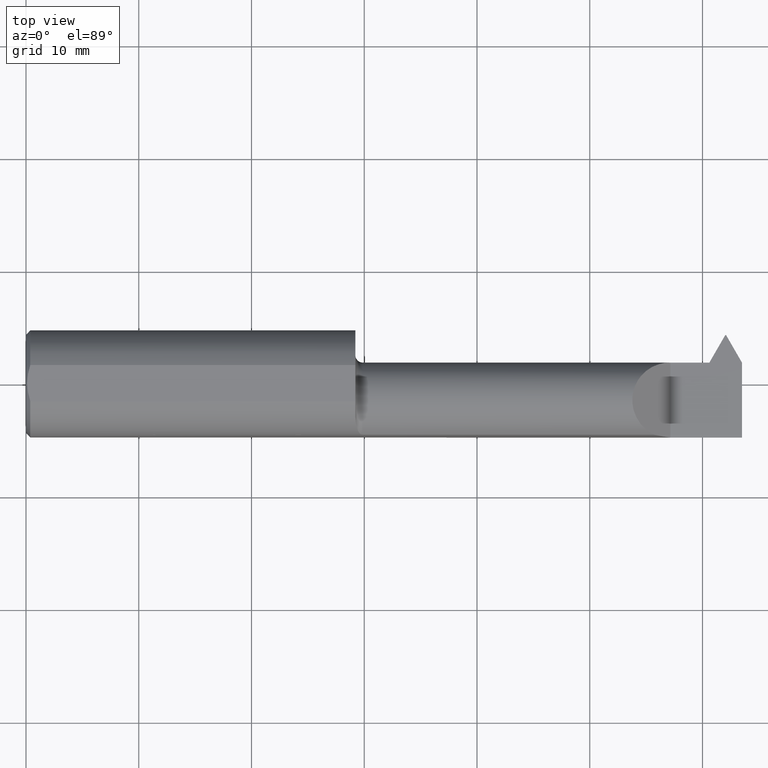
[diagram: clean part render]
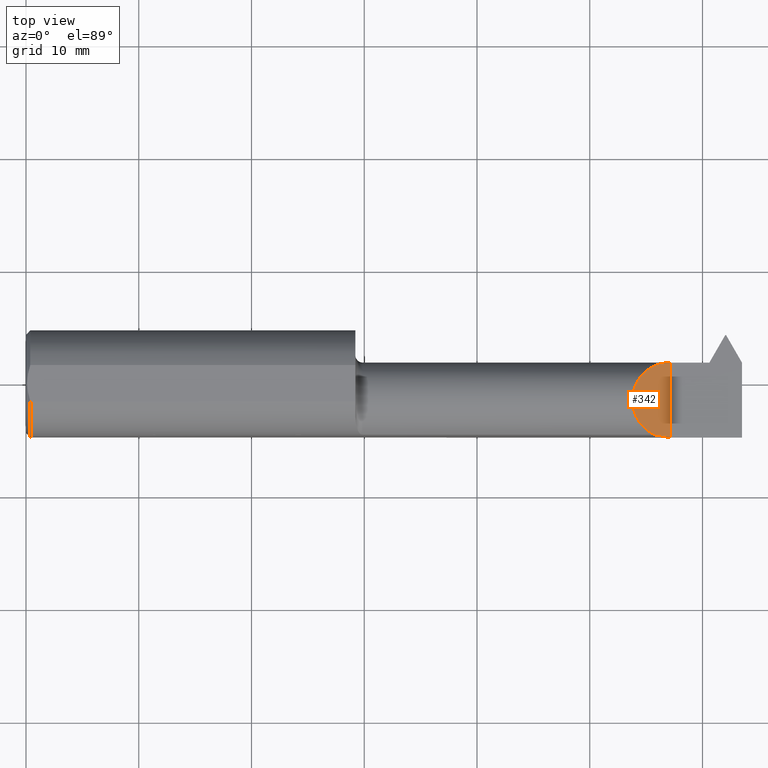
[diagram: same view with one face highlighted and labeled with its STEP entity id]
A machine part, top view. The second image highlights one B-rep face of the part: STEP entity #342.
In plain terms, the highlighted planar face has unit normal (-0.7071, 0, -0.7071).
Its self-contained STEP definition (entity closure, byte-faithful):
#19 = CARTESIAN_POINT ( 'NONE',  ( 2.192691453216397690, -0.1783697086546694455, 0.05730854678360214338 ) ) ;
#21 = CARTESIAN_POINT ( 'NONE',  ( 2.250000000000000000, 0.07464999999999979985, 4.959819536546775670E-16 ) ) ;
#31 = ORIENTED_EDGE ( 'NONE', *, *, #67, .F. ) ;
#54 =( BOUNDED_CURVE ( )  B_SPLINE_CURVE ( 3, ( #363, #670, #307, #467 ),
 .UNSPECIFIED., .F., .T. ) 
 B_SPLINE_CURVE_WITH_KNOTS ( ( 4, 4 ),
 ( 4.712388980384690562, 5.023262387692865261 ),
 .UNSPECIFIED. ) 
 CURVE ( )  GEOMETRIC_REPRESENTATION_ITEM ( )  RATIONAL_B_SPLINE_CURVE ( ( 1.000000000000000000, 0.9919626788073504509, 0.9919626788073504509, 1.000000000000000000 ) ) 
 REPRESENTATION_ITEM ( '' )  );
#67 = EDGE_CURVE ( 'NONE', #601, #623, #696, .T. ) ;
#79 = AXIS2_PLACEMENT_3D ( 'NONE', #177, #732, #415 ) ;
#115 = LINE ( 'NONE', #400, #801 ) ;
#177 = CARTESIAN_POINT ( 'NONE',  ( 2.250000000000000000, -0.2500000000000000555, 9.184850993605143507E-17 ) ) ;
#187 = EDGE_CURVE ( 'NONE', #763, #601, #54, .T. ) ;
#286 = CARTESIAN_POINT ( 'NONE',  ( 2.250000000000000000, 0.07464999999999979985, 4.959819536546775670E-16 ) ) ;
#303 = DIRECTION ( 'NONE',  ( -0.000000000000000000, 1.000000000000000000, -0.000000000000000000 ) ) ;
#307 = CARTESIAN_POINT ( 'NONE',  ( 2.211249739839922235, -0.1843323154515827400, 0.03875026016007727947 ) ) ;
#322 = EDGE_LOOP ( 'NONE', ( #31, #627, #328 ) ) ;
#328 = ORIENTED_EDGE ( 'NONE', *, *, #359, .T. ) ;
#338 = FACE_OUTER_BOUND ( 'NONE', #322, .T. ) ;
#342 = ADVANCED_FACE ( 'NONE', ( #338 ), #668, .F. ) ;
#359 = EDGE_CURVE ( 'NONE', #763, #623, #115, .T. ) ;
#363 = CARTESIAN_POINT ( 'NONE',  ( 2.250000000000000000, -0.1873499999999999888, 9.184850993605143507E-17 ) ) ;
#399 = CARTESIAN_POINT ( 'NONE',  ( 2.030319072763994814, -0.1008380660117488836, 0.2196809272360033816 ) ) ;
#400 = CARTESIAN_POINT ( 'NONE',  ( 2.250000000000000000, -0.2500000000000000555, 9.184850993605143507E-17 ) ) ;
#415 = DIRECTION ( 'NONE',  ( -0.7071067811865511255, 0.000000000000000000, 0.7071067811865440200 ) ) ;
#462 = CARTESIAN_POINT ( 'NONE',  ( 2.192691453216397690, -0.1783697086546694455, 0.05730854678360214338 ) ) ;
#467 = CARTESIAN_POINT ( 'NONE',  ( 2.192691453216397690, -0.1783697086546694455, 0.05730854678360214338 ) ) ;
#574 = CARTESIAN_POINT ( 'NONE',  ( 2.070066830337790265, 0.07464999999999938352, 0.1799331696622082921 ) ) ;
#590 = CARTESIAN_POINT ( 'NONE',  ( 2.250000000000000000, -0.1873499999999999888, 9.184850993605143507E-17 ) ) ;
#601 = VERTEX_POINT ( 'NONE', #462 ) ;
#623 = VERTEX_POINT ( 'NONE', #21 ) ;
#627 = ORIENTED_EDGE ( 'NONE', *, *, #187, .F. ) ;
#668 = PLANE ( 'NONE',  #79 ) ;
#670 = CARTESIAN_POINT ( 'NONE',  ( 2.230507368514859312, -0.1873499999999999888, 0.01949263148514072258 ) ) ;
#696 =( BOUNDED_CURVE ( )  B_SPLINE_CURVE ( 3, ( #19, #399, #574, #286 ),
 .UNSPECIFIED., .F., .T. ) 
 B_SPLINE_CURVE_WITH_KNOTS ( ( 4, 4 ),
 ( 5.157869252308497465, 7.853981633974480125 ),
 .UNSPECIFIED. ) 
 CURVE ( )  GEOMETRIC_REPRESENTATION_ITEM ( )  RATIONAL_B_SPLINE_CURVE ( ( 1.000000000000000000, 0.4806019281062881565, 0.4806019281062881565, 1.000000000000000000 ) ) 
 REPRESENTATION_ITEM ( '' )  );
#732 = DIRECTION ( 'NONE',  ( -0.7071067811865440200, 0.000000000000000000, -0.7071067811865511255 ) ) ;
#763 = VERTEX_POINT ( 'NONE', #590 ) ;
#801 = VECTOR ( 'NONE', #303, 39.37007874015748143 ) ;